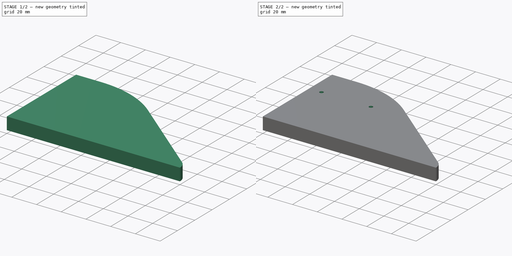
[diagram: build sequence overview — one tinted view per stage of 2, left to right]
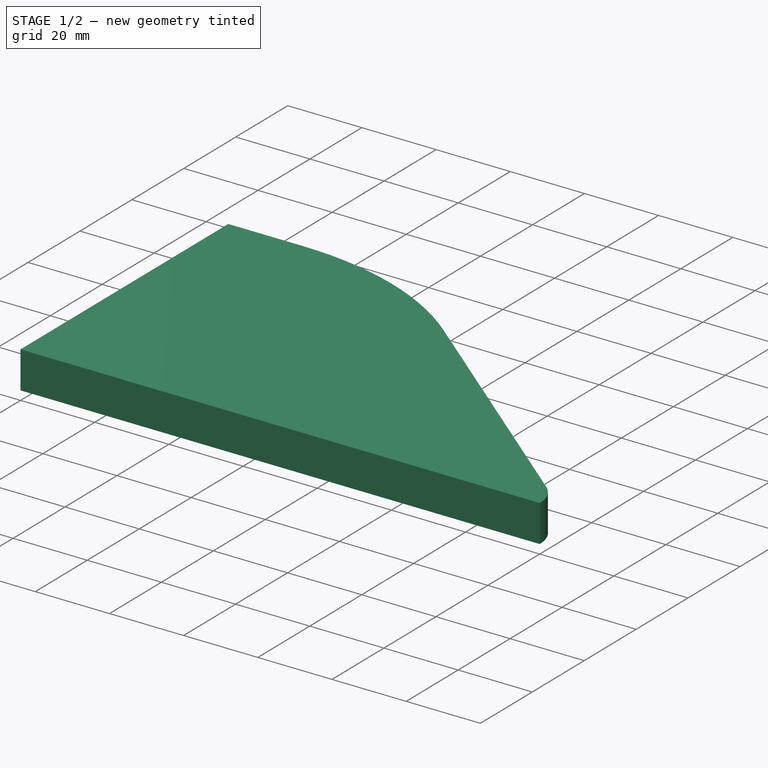
[diagram: stage 1 of 2 — iso view after this stage's code; geometry added in this stage tinted green]
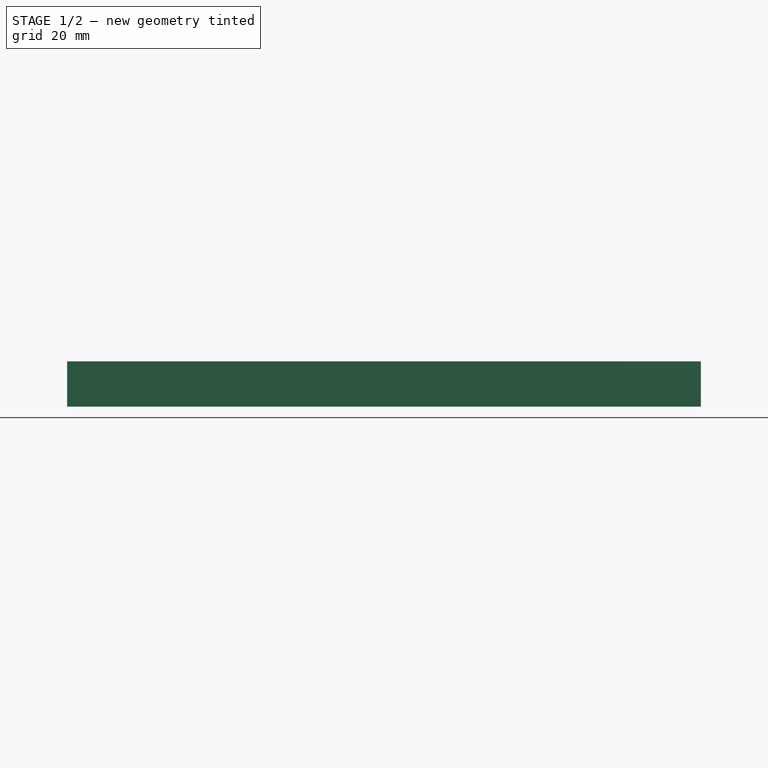
[diagram: stage 1 of 2 — front view after this stage's code; geometry added in this stage tinted green]
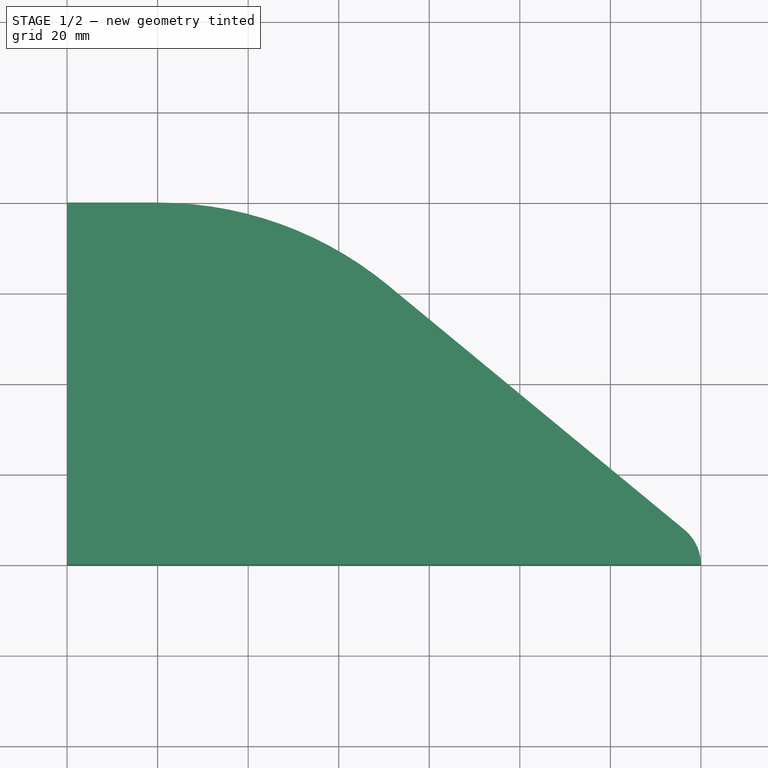
[diagram: stage 1 of 2 — top view after this stage's code; geometry added in this stage tinted green]
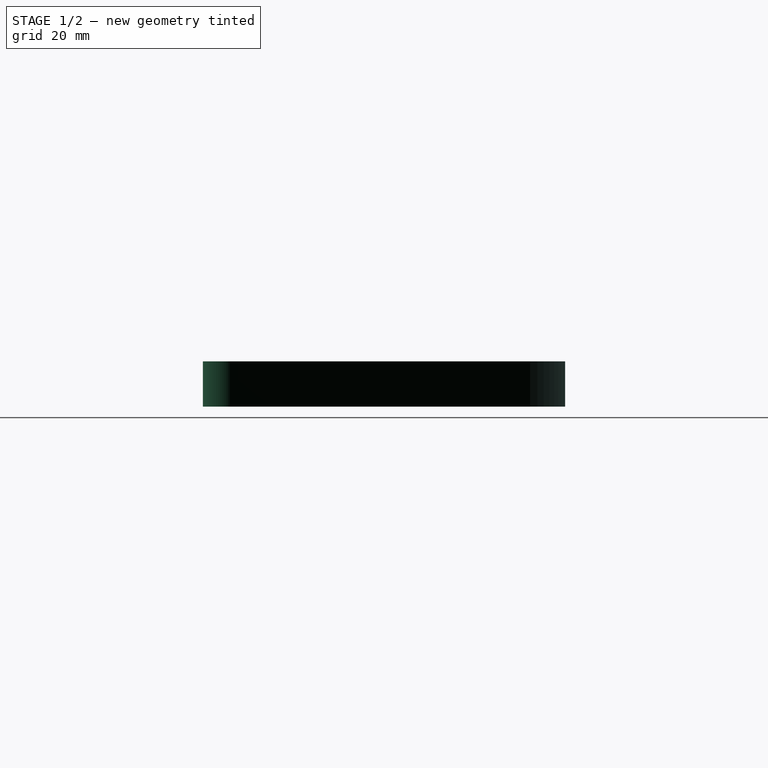
[diagram: stage 1 of 2 — right view after this stage's code; geometry added in this stage tinted green]
FCSTD DOCUMENT  (FreeCAD 0.16R6706 (Git))
Label: guide_air_paroie_interieure
License: All rights reserved
LicenseURL: http://en.wikipedia.org/wiki/All_rights_reserved
objects: Sketcher::SketchObject×2, PartDesign::Pad×1, PartDesign::Pocket×1
note: 6 computed .brp shape members not serialized (recipe doc carries the construction recipe); baked Part::Feature solids carry a one-line shape summary decoded from their .brp

FEATURE [Sketcher::SketchObject] Sketch
  sketch-geometry (6):
    g0: LineSegment StartX=0 StartY=0 StartZ=0 EndX=140 EndY=0 EndZ=0
    g1: LineSegment StartX=0 StartY=0 StartZ=0 EndX=0 EndY=80 EndZ=0
    g2: LineSegment StartX=0 StartY=80 StartZ=0 EndX=20 EndY=80 EndZ=0
    g3: LineSegment StartX=70.909 StartY=61.7112 StartZ=0 EndX=136.364 EndY=7.71389 EndZ=0
    g4: ArcOfCircle CenterX=20 CenterY=0 CenterZ=0 NormalX=0 NormalY=0 NormalZ=1 Radius=80 StartAngle=0.881022 EndAngle=1.5708
    g5: ArcOfCircle CenterX=130 CenterY=0 CenterZ=0 NormalX=0 NormalY=0 NormalZ=1 Radius=10 StartAngle=0 EndAngle=0.881021
  constraints (18):
    c: Horizontal(g0)
    c: Vertical(g1)
    c: Horizontal(g2)
    c: Coincident(g1,g-1)
    c: Coincident(g0,g-1)
    c: Coincident(g1,g2)
    c: Coincident(g4,g2)
    c: Coincident(g4,g3)
    c: Tangent(g4,g2)
    c: Tangent(g3,g4)
    c: Tangent(g5,g3) = 1.5708
    c: Coincident(g0,g5)
    c: DistanceX(g0,g0) = 140
    c: PointOnObject(g5,g0)
    c: DistanceX(g-1,g5) = 130
    c: DistanceX(g-1,g4) = 20
    c: DistanceY(g1,g1) = 80
    c: PointOnObject(g4,g0)
FEATURE [PartDesign::Pad] Pad
  Length = 10
  Length2 = 100
  Sketch = -> Sketch
  Type = 0
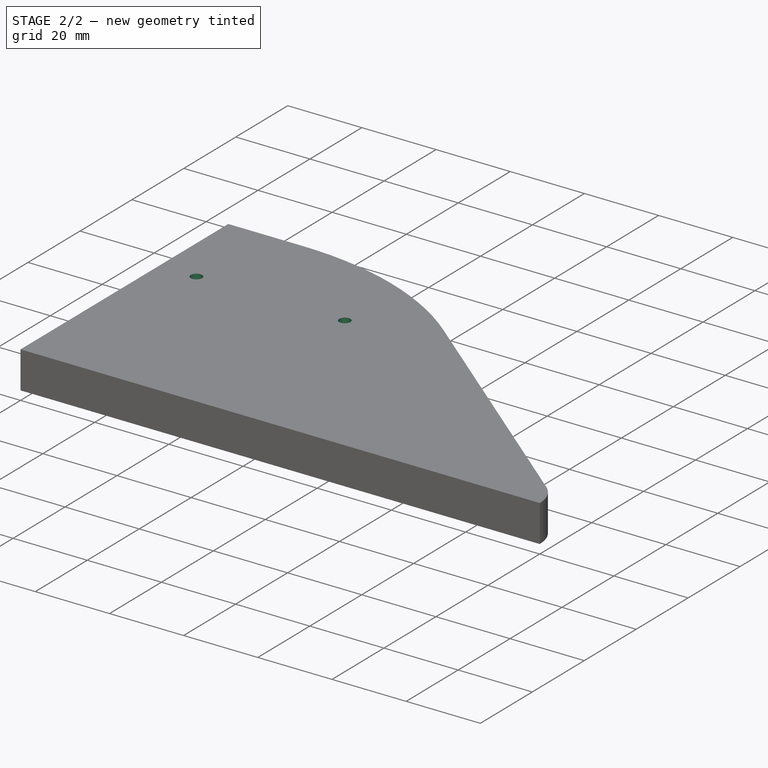
[diagram: stage 2 of 2 — iso view after this stage's code; geometry added in this stage tinted green]
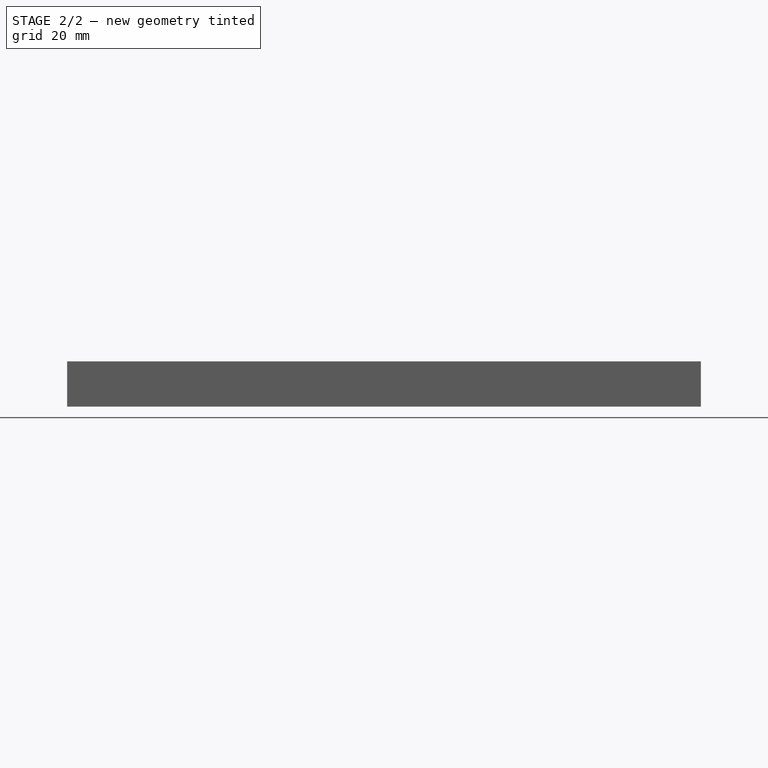
[diagram: stage 2 of 2 — front view after this stage's code; geometry added in this stage tinted green]
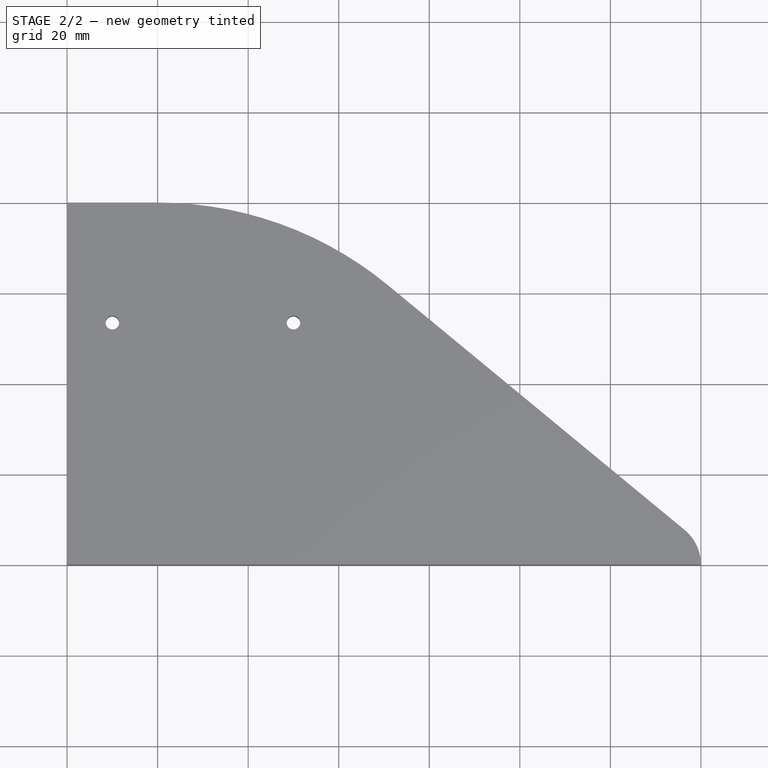
[diagram: stage 2 of 2 — top view after this stage's code; geometry added in this stage tinted green]
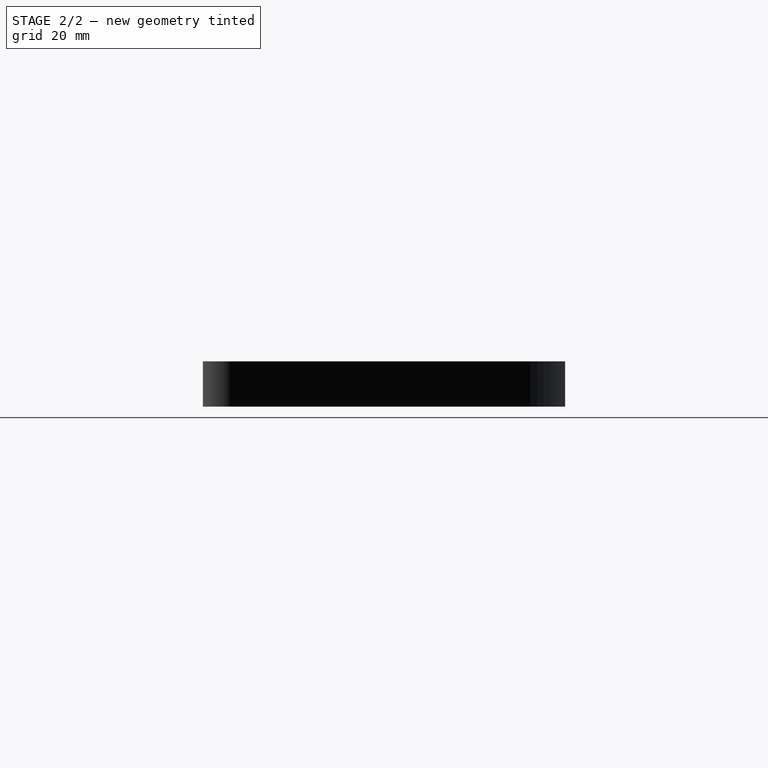
[diagram: stage 2 of 2 — right view after this stage's code; geometry added in this stage tinted green]
FEATURE [Sketcher::SketchObject] Sketch001
  Placement = pos=(0,0,10) rot=(0,0,1;0rad)
  Support = -> Pad [Face8]
  sketch-geometry (3):
    g0: Circle CenterX=10 CenterY=53.47 CenterZ=0 NormalX=0 NormalY=0 NormalZ=1 Radius=1.5
    g1: Circle CenterX=50 CenterY=53.47 CenterZ=0 NormalX=0 NormalY=0 NormalZ=1 Radius=1.5
    g2: LineSegment [constr] StartX=50 StartY=53.47 StartZ=0 EndX=10 EndY=53.47 EndZ=0
  constraints (10):
    c: Equal(g1,g0)
    c: DistanceX(g-1,g0) = 10
    c: DistanceX(g0,g1) = 40
    c: DistanceY(g-1,g0) = 53.47
    c: Horizontal(g2)
    c: PointOnObject(g0,g2)
    c: PointOnObject(g1,g2)
    c: Coincident(g2,g0)
    c: Coincident(g2,g1)
    c: Radius(g1) = 1.5
FEATURE [PartDesign::Pocket] Pocket
  Length = 5
  Sketch = -> Sketch001
  Type = 1
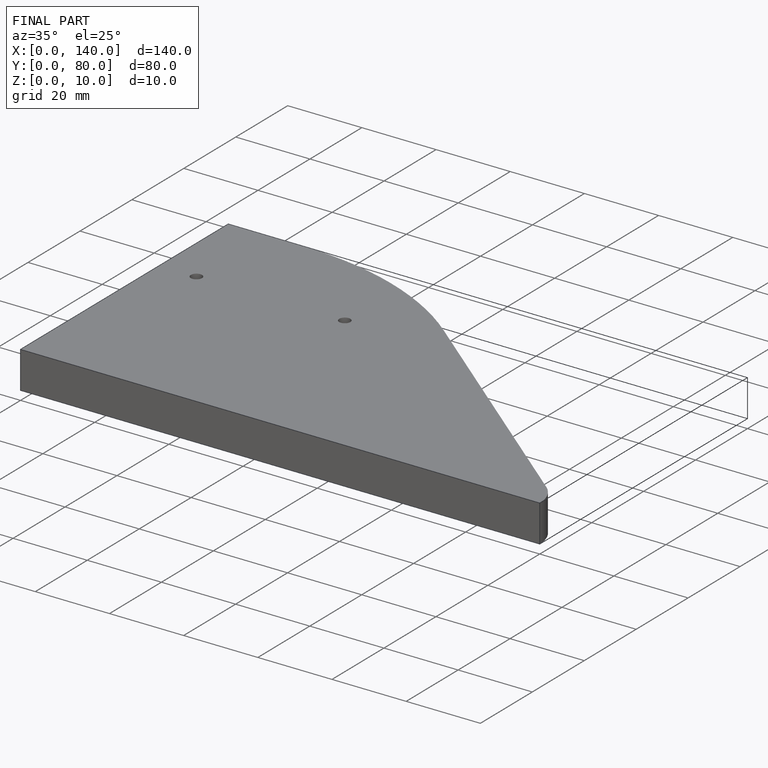
[diagram: finished part — iso view with bounding-box wireframe]
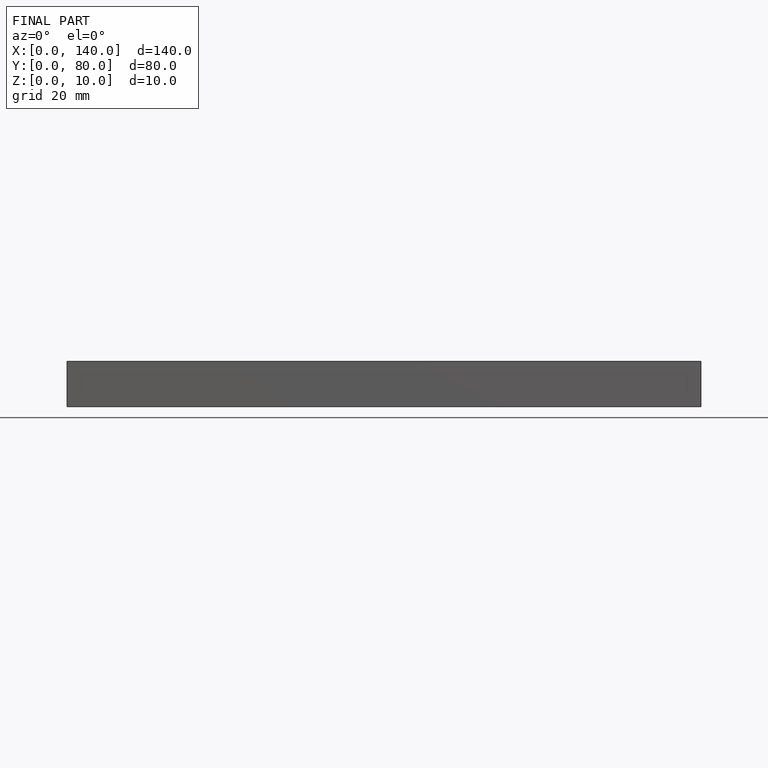
[diagram: finished part — front view with bounding-box wireframe]
